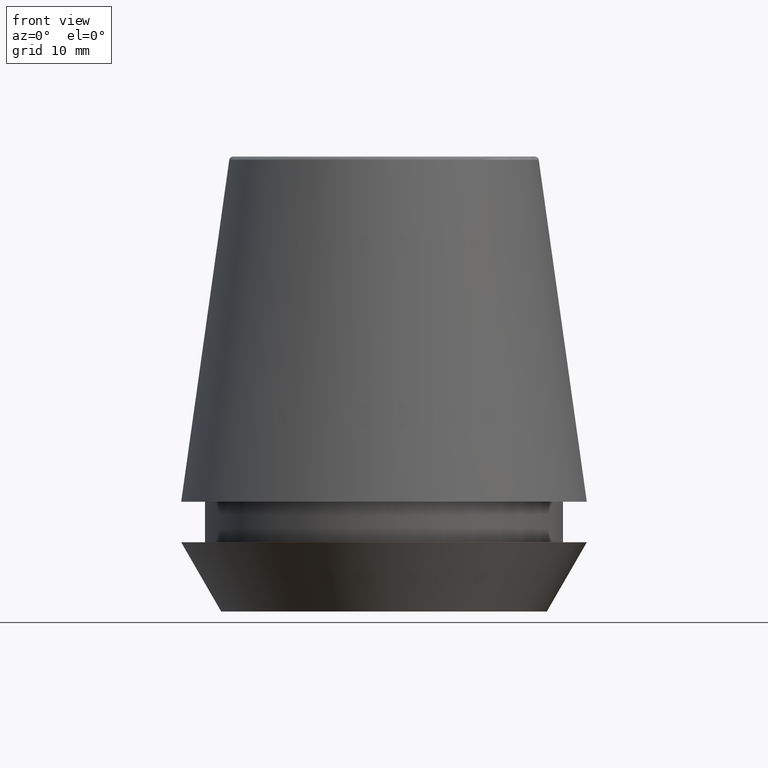
[diagram: clean part render]
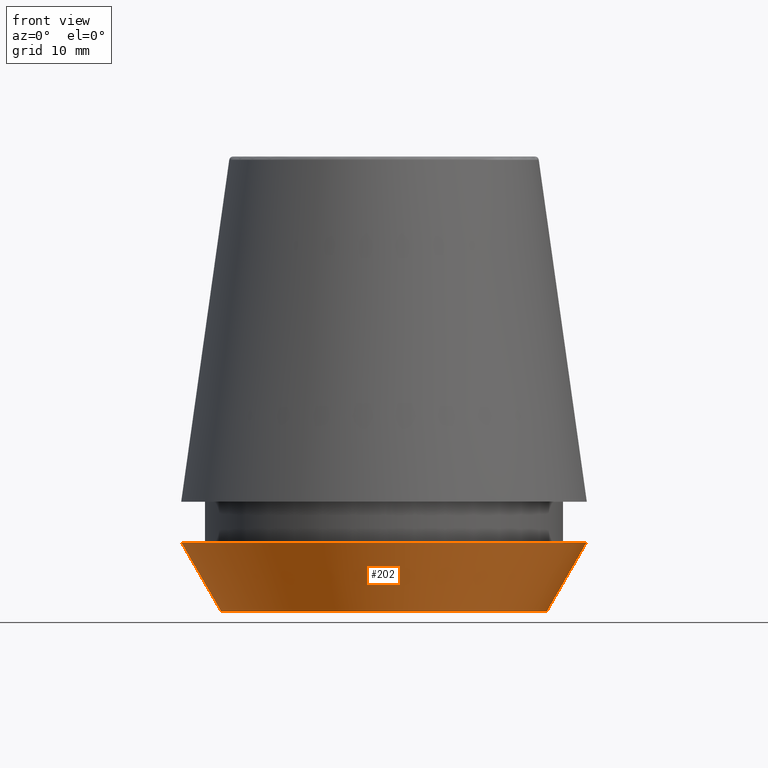
[diagram: same view with one face highlighted and labeled with its STEP entity id]
A machine part, front view. The second image highlights one B-rep face of the part: STEP entity #202.
In plain terms, the highlighted conical surface has half-angle 30 deg.
Its self-contained STEP definition (entity closure, byte-faithful):
#1 = VECTOR ( 'NONE', #119, 1000.000000000000000 ) ;
#8 = VECTOR ( 'NONE', #197, 1000.000000000000000 ) ;
#23 = CARTESIAN_POINT ( 'NONE',  ( 0.0000000000000000000, 0.0000000000000000000, 0.0000000000000000000 ) ) ;
#24 = DIRECTION ( 'NONE',  ( -0.0000000000000000000, -0.0000000000000000000, 1.000000000000000000 ) ) ;
#26 = CARTESIAN_POINT ( 'NONE',  ( 0.0000000000000000000, 0.0000000000000000000, 7.000000000000006200 ) ) ;
#38 = VERTEX_POINT ( 'NONE', #108 ) ;
#48 = ORIENTED_EDGE ( 'NONE', *, *, #78, .F. ) ;
#50 = VERTEX_POINT ( 'NONE', #314 ) ;
#62 = EDGE_LOOP ( 'NONE', ( #48, #68, #66, #238 ) ) ;
#64 = CARTESIAN_POINT ( 'NONE',  ( -16.45854811567268100, 2.263058382549599700E-015, 0.0000000000000000000 ) ) ;
#66 = ORIENTED_EDGE ( 'NONE', *, *, #315, .T. ) ;
#68 = ORIENTED_EDGE ( 'NONE', *, *, #190, .T. ) ;
#78 = EDGE_CURVE ( 'NONE', #336, #38, #194, .T. ) ;
#93 = CARTESIAN_POINT ( 'NONE',  ( 0.0000000000000000000, 0.0000000000000000000, 0.0000000000000000000 ) ) ;
#108 = CARTESIAN_POINT ( 'NONE',  ( -20.50000000000000000, 2.510525938252074100E-015, 7.000000000000006200 ) ) ;
#119 = DIRECTION ( 'NONE',  ( -0.4999999999999941700, 6.123233995736694500E-017, 0.8660254037844420400 ) ) ;
#142 = DIRECTION ( 'NONE',  ( 1.000000000000000000, 0.0000000000000000000, 0.0000000000000000000 ) ) ;
#144 = CARTESIAN_POINT ( 'NONE',  ( 16.45854811567268100, 0.0000000000000000000, 0.0000000000000000000 ) ) ;
#147 = EDGE_CURVE ( 'NONE', #38, #222, #157, .T. ) ;
#157 = CIRCLE ( 'NONE', #327, 20.50000000000000000 ) ;
#190 = EDGE_CURVE ( 'NONE', #336, #50, #317, .T. ) ;
#194 = LINE ( 'NONE', #386, #1 ) ;
#197 = DIRECTION ( 'NONE',  ( 0.4999999999999941700, 0.0000000000000000000, 0.8660254037844420400 ) ) ;
#202 = ADVANCED_FACE ( 'NONE', ( #358 ), #216, .T. ) ;
#216 = CONICAL_SURFACE ( 'NONE', #268, 16.45854811567268100, 0.5235987755982921500 ) ;
#222 = VERTEX_POINT ( 'NONE', #263 ) ;
#238 = ORIENTED_EDGE ( 'NONE', *, *, #147, .F. ) ;
#259 = DIRECTION ( 'NONE',  ( -0.0000000000000000000, -0.0000000000000000000, 1.000000000000000000 ) ) ;
#263 = CARTESIAN_POINT ( 'NONE',  ( 20.50000000000000000, 0.0000000000000000000, 7.000000000000006200 ) ) ;
#264 = DIRECTION ( 'NONE',  ( -0.0000000000000000000, -0.0000000000000000000, 1.000000000000000000 ) ) ;
#268 = AXIS2_PLACEMENT_3D ( 'NONE', #23, #259, #311 ) ;
#284 = AXIS2_PLACEMENT_3D ( 'NONE', #93, #24, #286 ) ;
#286 = DIRECTION ( 'NONE',  ( 1.000000000000000000, 0.0000000000000000000, 0.0000000000000000000 ) ) ;
#311 = DIRECTION ( 'NONE',  ( 1.000000000000000000, 0.0000000000000000000, 0.0000000000000000000 ) ) ;
#314 = CARTESIAN_POINT ( 'NONE',  ( 16.45854811567268100, 0.0000000000000000000, 0.0000000000000000000 ) ) ;
#315 = EDGE_CURVE ( 'NONE', #50, #222, #353, .T. ) ;
#317 = CIRCLE ( 'NONE', #284, 16.45854811567268100 ) ;
#327 = AXIS2_PLACEMENT_3D ( 'NONE', #26, #264, #142 ) ;
#336 = VERTEX_POINT ( 'NONE', #64 ) ;
#353 = LINE ( 'NONE', #144, #8 ) ;
#358 = FACE_OUTER_BOUND ( 'NONE', #62, .T. ) ;
#386 = CARTESIAN_POINT ( 'NONE',  ( -16.45854811567268100, 2.015590826847124800E-015, 0.0000000000000000000 ) ) ;